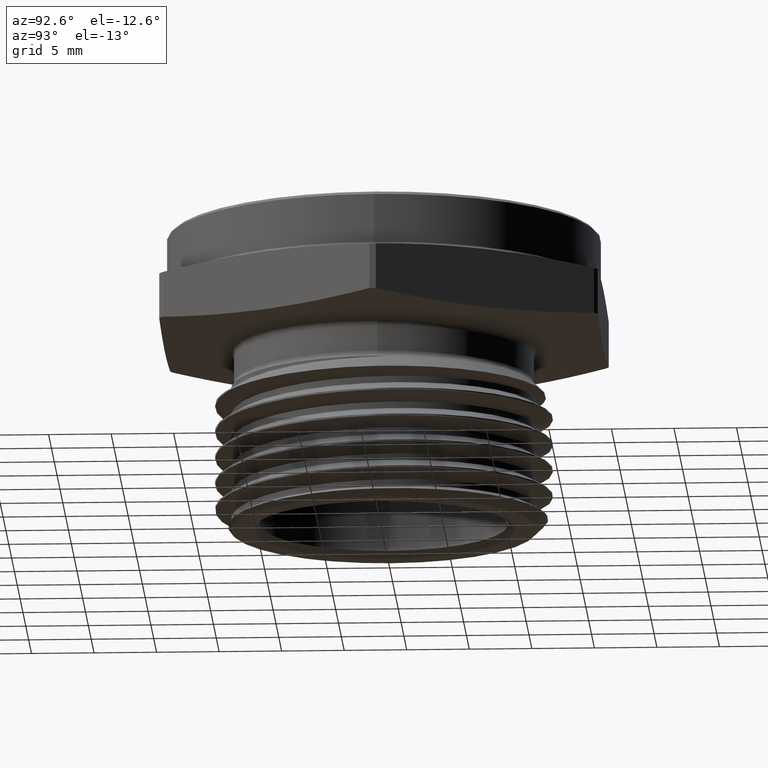
[diagram: clean part render]
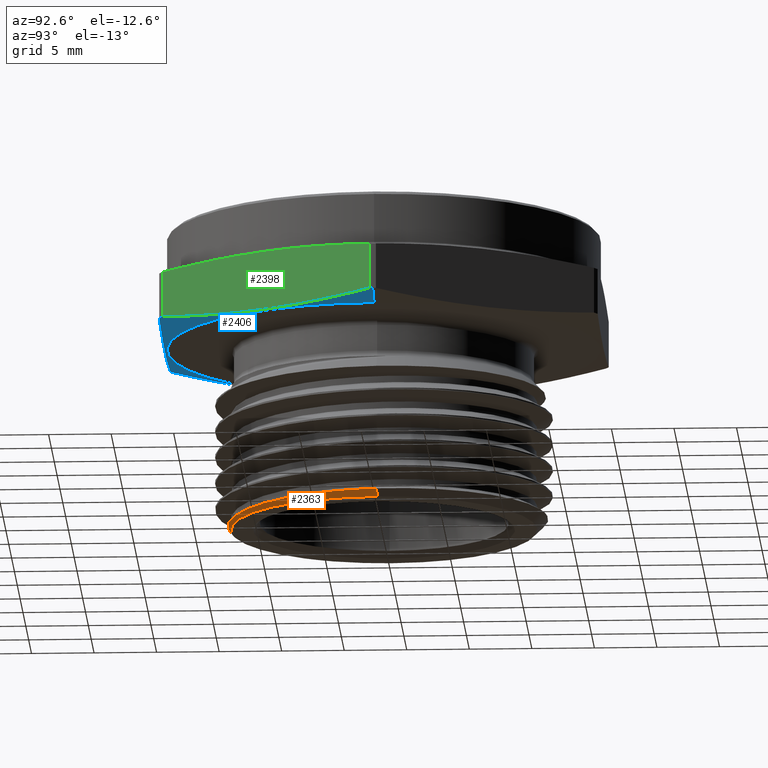
[diagram: same view with three faces highlighted in distinct colors, each labeled with its STEP entity id]
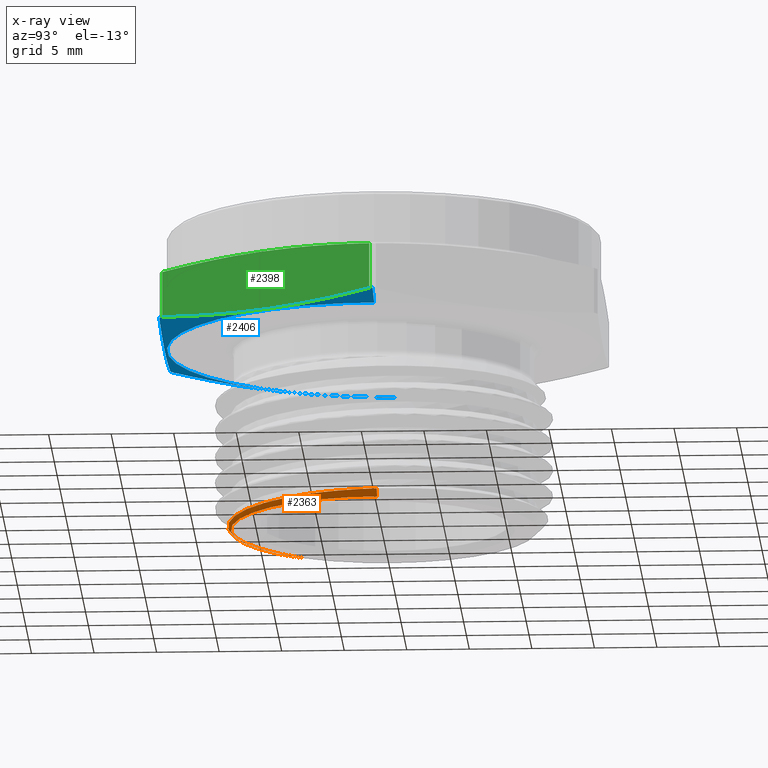
[diagram: x-ray of the same camera — body ghosted, the three highlighted faces saturated]
A machine part, auxiliary view with three faces highlighted in distinct colors.
The next image is the same camera in x-ray (body ghosted, the three faces saturated) — at least one of them is partly hidden behind the body in this view.
Their STEP definitions:

[orange] entity #2363 — the highlighted conical surface has half-angle 45 deg.
#403 = LINE ( 'NONE', #2499, #404 ) ;
#404 = VECTOR ( 'NONE', #2513, 39.37007874015748100 ) ;
#408 = CIRCLE ( 'NONE', #2247, 0.4816499999999999700 ) ;
#521 = FACE_OUTER_BOUND ( 'NONE', #1694, .T. ) ;
#532 = CONICAL_SURFACE ( 'NONE', #2303, 0.4816499999999999700, 0.7853981633974600500 ) ;
#1113 = DIRECTION ( 'NONE',  ( 1.000000000000000000, 0.0000000000000000000, 0.0000000000000000000 ) ) ;
#1115 = CARTESIAN_POINT ( 'NONE',  ( 0.0000000000000000000, 0.0000000000000000000, -0.5799999999999999600 ) ) ;
#1116 = DIRECTION ( 'NONE',  ( -0.0000000000000000000, -0.0000000000000000000, 1.000000000000000000 ) ) ;
#1218 = ORIENTED_EDGE ( 'NONE', *, *, #1563, .T. ) ;
#1219 = ORIENTED_EDGE ( 'NONE', *, *, #1554, .T. ) ;
#1220 = ORIENTED_EDGE ( 'NONE', *, *, #1568, .F. ) ;
#1230 = VERTEX_POINT ( 'NONE', #1362 ) ;
#1239 = VERTEX_POINT ( 'NONE', #1369 ) ;
#1240 = VERTEX_POINT ( 'NONE', #1370 ) ;
#1280 = B_SPLINE_CURVE_WITH_KNOTS ( 'NONE', 3,
 ( #2648, #2644, #2651, #2652, #2653, #2654, #2655, #2656, #2657, #2658, #2659, #2660, #2661, #2662, #2663, #2664, #2665, #2666, #2667, #2668, #2669, #2670, #2671, #2672, #2673, #2674, #2675, #2676, #2677, #2678, #2679, #2680, #2681, #2682, #2683, #2684, #2685, #2686, #2687, #2688, #2689, #2690 ),
 .UNSPECIFIED., .F., .F.,
 ( 4, 2, 2, 2, 2, 2, 2, 2, 2, 2, 2, 2, 2, 2, 2, 2, 2, 2, 2, 2, 4 ),
 ( 0.0000000000000000000, 0.002000291694787827900, 0.004000583389575655900, 0.006000875084363485900, 0.007001020931757398000, 0.008001166779151310000, 0.01000145847393913200, 0.01100160432133304500, 0.01200175016872695600, 0.01400204186351478200, 0.01500218771090869300, 0.01600233355830260600, 0.01800262525309043500, 0.01900277110048434800, 0.02000291694787826100, 0.02200320864266609000, 0.02400350033745391600, 0.02800408372702957800, 0.02900422957442349400, 0.03000437542181741100, 0.03200466711660524700 ),
 .UNSPECIFIED. ) ;
#1362 = CARTESIAN_POINT ( 'NONE',  ( -0.4009595742063897800, -0.2668672747869820200, -0.5799999999999999600 ) ) ;
#1369 = CARTESIAN_POINT ( 'NONE',  ( 0.4816499999999999700, 0.0000000000000000000, -0.5799999999999999600 ) ) ;
#1370 = CARTESIAN_POINT ( 'NONE',  ( 0.5031185512786202600, -2.141698986817652400E-016, -0.5585314487213800500 ) ) ;
#1554 = EDGE_CURVE ( 'NONE', #1239, #1240, #403, .T. ) ;
#1563 = EDGE_CURVE ( 'NONE', #1230, #1239, #408, .T. ) ;
#1568 = EDGE_CURVE ( 'NONE', #1230, #1240, #1280, .T. ) ;
#1694 = EDGE_LOOP ( 'NONE', ( #1218, #1219, #1220 ) ) ;
#2247 = AXIS2_PLACEMENT_3D ( 'NONE', #2638, #2639, #2640 ) ;
#2303 = AXIS2_PLACEMENT_3D ( 'NONE', #1115, #1116, #1113 ) ;
#2363 = ADVANCED_FACE ( 'NONE', ( #521 ), #532, .T. ) ;
#2499 = CARTESIAN_POINT ( 'NONE',  ( 0.4816499999999999700, 0.0000000000000000000, -0.5799999999999999600 ) ) ;
#2513 = DIRECTION ( 'NONE',  ( 0.7071067811865557900, 0.0000000000000000000, 0.7071067811865392500 ) ) ;
#2638 = CARTESIAN_POINT ( 'NONE',  ( 0.0000000000000000000, 0.0000000000000000000, -0.5799999999999999600 ) ) ;
#2639 = DIRECTION ( 'NONE',  ( -0.0000000000000000000, -0.0000000000000000000, 1.000000000000000000 ) ) ;
#2640 = DIRECTION ( 'NONE',  ( 1.000000000000000000, 0.0000000000000000000, 0.0000000000000000000 ) ) ;
#2644 = CARTESIAN_POINT ( 'NONE',  ( -0.3866821730178835500, -0.2891343817133520400, -0.5795480090490741100 ) ) ;
#2648 = CARTESIAN_POINT ( 'NONE',  ( -0.4009595742063897800, -0.2668672747869820200, -0.5799999999999999600 ) ) ;
#2651 = CARTESIAN_POINT ( 'NONE',  ( -0.3707241073460085200, -0.3100015497181390900, -0.5791071411886793400 ) ) ;
#2652 = CARTESIAN_POINT ( 'NONE',  ( -0.3355575581067044600, -0.3490272160494395400, -0.5781945642663470800 ) ) ;
#2653 = CARTESIAN_POINT ( 'NONE',  ( -0.3161922131648348700, -0.3672724397141137700, -0.5777272339539689700 ) ) ;
#2654 = CARTESIAN_POINT ( 'NONE',  ( -0.2752904757120140900, -0.3999705970766904200, -0.5768036249474072200 ) ) ;
#2655 = CARTESIAN_POINT ( 'NONE',  ( -0.2536733461872429700, -0.4145527954576549400, -0.5763448196500921000 ) ) ;
#2656 = CARTESIAN_POINT ( 'NONE',  ( -0.2195069001393342200, -0.4337888591852561100, -0.5756610223639401200 ) ) ;
#2657 = CARTESIAN_POINT ( 'NONE',  ( -0.2078265679815982900, -0.4397592332650670000, -0.5754338270790941800 ) ) ;
#2658 = CARTESIAN_POINT ( 'NONE',  ( -0.1838667751211463500, -0.4507923023664759400, -0.5749809213898204900 ) ) ;
#2659 = CARTESIAN_POINT ( 'NONE',  ( -0.1716357036040178600, -0.4558273513058849800, -0.5747561835279534300 ) ) ;
#2660 = CARTESIAN_POINT ( 'NONE',  ( -0.1346925654639016500, -0.4693123175987505800, -0.5740959651328092500 ) ) ;
#2661 = CARTESIAN_POINT ( 'NONE',  ( -0.1095472063104907200, -0.4762540833111919600, -0.5736577998862350000 ) ) ;
#2662 = CARTESIAN_POINT ( 'NONE',  ( -0.07106829302744618900, -0.4836485417257624900, -0.5729823466199081000 ) ) ;
#2663 = CARTESIAN_POINT ( 'NONE',  ( -0.05811428159998582200, -0.4856068600157785200, -0.5727552660491052100 ) ) ;
#2664 = CARTESIAN_POINT ( 'NONE',  ( -0.03194476694236413100, -0.4884863902008960700, -0.5722971720617589000 ) ) ;
#2665 = CARTESIAN_POINT ( 'NONE',  ( -0.01871767788396855300, -0.4894021186219921800, -0.5720659599773730800 ) ) ;
#2666 = CARTESIAN_POINT ( 'NONE',  ( 0.02064545026948671300, -0.4905390650121378400, -0.5713788533973561700 ) ) ;
#2667 = CARTESIAN_POINT ( 'NONE',  ( 0.04670176312215230900, -0.4891937825008211800, -0.5709253102877749300 ) ) ;
#2668 = CARTESIAN_POINT ( 'NONE',  ( 0.08551249131474186700, -0.4840766810645918400, -0.5702515906460324800 ) ) ;
#2669 = CARTESIAN_POINT ( 'NONE',  ( 0.09840355834074306100, -0.4818519734412882700, -0.5700281204913023600 ) ) ;
#2670 = CARTESIAN_POINT ( 'NONE',  ( 0.1240921537534206700, -0.4763435609136968400, -0.5695834003863057300 ) ) ;
#2671 = CARTESIAN_POINT ( 'NONE',  ( 0.1369409378553699000, -0.4730415715284181400, -0.5693612670356331700 ) ) ;
#2672 = CARTESIAN_POINT ( 'NONE',  ( 0.1747298995552524200, -0.4616841806796993500, -0.5687088153907343700 ) ) ;
#2673 = CARTESIAN_POINT ( 'NONE',  ( 0.1990574549025430900, -0.4521942641284456000, -0.5682706610823284900 ) ) ;
#2674 = CARTESIAN_POINT ( 'NONE',  ( 0.2342858827081756300, -0.4351591799777545000, -0.5676021287797766700 ) ) ;
#2675 = CARTESIAN_POINT ( 'NONE',  ( 0.2458170519383219300, -0.4290115384678128100, -0.5673777712387807500 ) ) ;
#2676 = CARTESIAN_POINT ( 'NONE',  ( 0.2684493696269112900, -0.4157627480758685500, -0.5669259964352850700 ) ) ;
#2677 = CARTESIAN_POINT ( 'NONE',  ( 0.2795949843939250500, -0.4086296811417418600, -0.5666976347051131400 ) ) ;
#2678 = CARTESIAN_POINT ( 'NONE',  ( 0.3120231869421083400, -0.3859928327230589500, -0.5660150281566772600 ) ) ;
#2679 = CARTESIAN_POINT ( 'NONE',  ( 0.3321858789200186100, -0.3693662979836592200, -0.5655659688681736700 ) ) ;
#2680 = CARTESIAN_POINT ( 'NONE',  ( 0.3696951225909068100, -0.3331439308257612100, -0.5646793690593681100 ) ) ;
#2681 = CARTESIAN_POINT ( 'NONE',  ( 0.3870417260485606900, -0.3135481492140856900, -0.5642419807966878600 ) ) ;
#2682 = CARTESIAN_POINT ( 'NONE',  ( 0.4346760739491819500, -0.2501157814801557900, -0.5629464955332226200 ) ) ;
#2683 = CARTESIAN_POINT ( 'NONE',  ( 0.4590739523821927800, -0.2040001061075403000, -0.5620637767222144100 ) ) ;
#2684 = CARTESIAN_POINT ( 'NONE',  ( 0.4804357478325346800, -0.1416590044808808700, -0.5609383839613864000 ) ) ;
#2685 = CARTESIAN_POINT ( 'NONE',  ( 0.4842266169504221300, -0.1289757445964337100, -0.5607126603903764800 ) ) ;
#2686 = CARTESIAN_POINT ( 'NONE',  ( 0.4907447822000614000, -0.1035695148422612500, -0.5602667687098431500 ) ) ;
#2687 = CARTESIAN_POINT ( 'NONE',  ( 0.4934911248432264400, -0.09079361491093135300, -0.5600456397739173000 ) ) ;
#2688 = CARTESIAN_POINT ( 'NONE',  ( 0.5002174461894849400, -0.05225118212678967600, -0.5593875854528436200 ) ) ;
#2689 = CARTESIAN_POINT ( 'NONE',  ( 0.5026940340915642100, -0.02627123858077525700, -0.5589559659084357700 ) ) ;
#2690 = CARTESIAN_POINT ( 'NONE',  ( 0.5031185512786202600, -2.141698986817652400E-016, -0.5585314487213800500 ) ) ;

[blue] entity #2406 — the highlighted conical surface has half-angle 78 deg.
#381 = CIRCLE ( 'NONE', #2245, 0.7907433714816831700 ) ;
#431 = LINE ( 'NONE', #2006, #440 ) ;
#440 = VECTOR ( 'NONE', #2002, 39.37007874015748100 ) ;
#441 = LINE ( 'NONE', #2027, #446 ) ;
#446 = VECTOR ( 'NONE', #2041, 39.37007874015748900 ) ;
#487 = CIRCLE ( 'NONE', #2292, 0.7907433714816831700 ) ;
#502 = CIRCLE ( 'NONE', #2293, 0.7907433714816831700 ) ;
#509 = CIRCLE ( 'NONE', #2296, 0.7907433714816831700 ) ;
#516 = CIRCLE ( 'NONE', #2298, 0.6825000000000003300 ) ;
#936 = CARTESIAN_POINT ( 'NONE',  ( 0.3219976674249818700, -0.6899999999999998400, 0.01633894775959133700 ) ) ;
#937 = CARTESIAN_POINT ( 'NONE',  ( 0.2577349926961727800, -0.6900000000000000600, 0.01093767977774149100 ) ) ;
#941 = CARTESIAN_POINT ( 'NONE',  ( -0.4044415792814496900, -0.6794866359911327900, 0.02300783886571764300 ) ) ;
#942 = CARTESIAN_POINT ( 'NONE',  ( -0.4366275708364185100, -0.6237388633259439700, 0.01632464615998722700 ) ) ;
#946 = CARTESIAN_POINT ( 'NONE',  ( -0.4688135623913871600, -0.5679910906607551500, 0.01091788870543787200 ) ) ;
#947 = CARTESIAN_POINT ( 'NONE',  ( -0.5331855455013246900, -0.4564955453303775100, 0.003542341500609492300 ) ) ;
#948 = CARTESIAN_POINT ( 'NONE',  ( -0.5975575286112623200, -0.3449999999999998600, -0.0003539930755590411600 ) ) ;
#949 = CARTESIAN_POINT ( 'NONE',  ( -0.6619295117211998500, -0.2335044546696225000, 0.003542341500609526600 ) ) ;
#950 = CARTESIAN_POINT ( 'NONE',  ( -0.7263014948311378200, -0.1220089093392450500, 0.01091788870543794000 ) ) ;
#951 = CARTESIAN_POINT ( 'NONE',  ( -0.7584874863861067500, -0.06626113667405626700, 0.01632464615998729900 ) ) ;
#952 = CARTESIAN_POINT ( 'NONE',  ( -0.7906734779410755600, -0.01051336400886784300, 0.02300783886571749300 ) ) ;
#953 = CARTESIAN_POINT ( 'NONE',  ( 0.3862318986596255900, -0.6899999999999998400, 0.02300783886571754200 ) ) ;
#955 = CARTESIAN_POINT ( 'NONE',  ( 0.1291328170298961800, -0.6900000000000000600, 0.003559008620510920200 ) ) ;
#956 = CARTESIAN_POINT ( 'NONE',  ( 0.06479285139855721400, -0.6900000000000000600, 0.001602315161522330900 ) ) ;
#957 = CARTESIAN_POINT ( 'NONE',  ( -0.06397452600538734700, -0.6900000000000001700, 0.001586084835941013700 ) ) ;
#958 = CARTESIAN_POINT ( 'NONE',  ( -0.1284019511491426600, -0.6900000000000000600, 0.003527143872885677700 ) ) ;
#959 = CARTESIAN_POINT ( 'NONE',  ( -0.2573352350253252400, -0.6900000000000001700, 0.01090476183656563200 ) ) ;
#960 = CARTESIAN_POINT ( 'NONE',  ( -0.3219022295582013600, -0.6900000000000001700, 0.01632903926175896500 ) ) ;
#961 = CARTESIAN_POINT ( 'NONE',  ( -0.3862318986596252100, -0.6900000000000001700, 0.02300783886571749300 ) ) ;
#989 = CARTESIAN_POINT ( 'NONE',  ( 2.817647622219903600E-018, 0.0000000000000000000, 0.02300783886571759100 ) ) ;
#990 = DIRECTION ( 'NONE',  ( -1.224646799147349800E-016, -0.0000000000000000000, -1.000000000000000000 ) ) ;
#991 = DIRECTION ( 'NONE',  ( -1.000000000000000000, 0.0000000000000000000, 1.241563202589344700E-016 ) ) ;
#1002 = CARTESIAN_POINT ( 'NONE',  ( 2.817647622219903600E-018, 0.0000000000000000000, 0.02300783886571759100 ) ) ;
#1003 = DIRECTION ( 'NONE',  ( -1.224646799147349800E-016, -0.0000000000000000000, -1.000000000000000000 ) ) ;
#1004 = DIRECTION ( 'NONE',  ( -1.000000000000000000, 0.0000000000000000000, 1.241563202589344700E-016 ) ) ;
#1015 = CARTESIAN_POINT ( 'NONE',  ( 0.7906734779410753400, -0.01051336400886681900, 0.02300783886571749300 ) ) ;
#1016 = CARTESIAN_POINT ( 'NONE',  ( 0.7584874863861066400, -0.06626113667405560100, 0.01632464615998709100 ) ) ;
#1017 = CARTESIAN_POINT ( 'NONE',  ( 2.817647622219903600E-018, 0.0000000000000000000, 0.02300783886571759100 ) ) ;
#1018 = DIRECTION ( 'NONE',  ( -1.224646799147349800E-016, -0.0000000000000000000, -1.000000000000000000 ) ) ;
#1019 = DIRECTION ( 'NONE',  ( -1.000000000000000000, 0.0000000000000000000, 1.241563202589344700E-016 ) ) ;
#1021 = CARTESIAN_POINT ( 'NONE',  ( 0.7263014948311378200, -0.1220089093392443800, 0.01091788870543777300 ) ) ;
#1022 = CARTESIAN_POINT ( 'NONE',  ( 0.6619295117212000700, -0.2335044546696219100, 0.003542341500609394300 ) ) ;
#1023 = CARTESIAN_POINT ( 'NONE',  ( 0.5975575286112633200, -0.3449999999999994200, -0.0003539930755591544000 ) ) ;
#1024 = CARTESIAN_POINT ( 'NONE',  ( 0.5331855455013254600, -0.4564955453303770600, 0.003542341500609400800 ) ) ;
#1025 = CARTESIAN_POINT ( 'NONE',  ( 0.4688135623913880500, -0.5679910906607547000, 0.01091788870543779700 ) ) ;
#1026 = CARTESIAN_POINT ( 'NONE',  ( 0.4366275708364192900, -0.6237388633259433000, 0.01632464615998712200 ) ) ;
#1027 = CARTESIAN_POINT ( 'NONE',  ( 0.4044415792814505800, -0.6794866359911321300, 0.02300783886571749300 ) ) ;
#1044 = CARTESIAN_POINT ( 'NONE',  ( 1.023586051666712600E-032, 0.0000000000000000000, 8.358214404180666500E-017 ) ) ;
#1045 = DIRECTION ( 'NONE',  ( -1.224646799147349800E-016, -0.0000000000000000000, -1.000000000000000000 ) ) ;
#1046 = DIRECTION ( 'NONE',  ( -1.000000000000000000, 0.0000000000000000000, 1.224646799147349800E-016 ) ) ;
#1303 = VERTEX_POINT ( 'NONE', #1458 ) ;
#1311 = VERTEX_POINT ( 'NONE', #1465 ) ;
#1319 = VERTEX_POINT ( 'NONE', #1473 ) ;
#1323 = VERTEX_POINT ( 'NONE', #1477 ) ;
#1328 = VERTEX_POINT ( 'NONE', #1482 ) ;
#1330 = VERTEX_POINT ( 'NONE', #1484 ) ;
#1458 = CARTESIAN_POINT ( 'NONE',  ( 0.6825000000000003300, 0.0000000000000000000, 0.0000000000000000000 ) ) ;
#1465 = CARTESIAN_POINT ( 'NONE',  ( -0.7906734779410755600, -0.01051336400886784300, 0.02300783886571749300 ) ) ;
#1473 = CARTESIAN_POINT ( 'NONE',  ( -0.6825000000000003300, 8.358214404180688700E-017, 1.671642880836133300E-016 ) ) ;
#1477 = CARTESIAN_POINT ( 'NONE',  ( 0.7906734779410753400, -0.01051336400886681900, 0.02300783886571749300 ) ) ;
#1482 = CARTESIAN_POINT ( 'NONE',  ( -0.7907433714816831700, 0.0000000000000000000, 0.02300783886571768800 ) ) ;
#1484 = CARTESIAN_POINT ( 'NONE',  ( 0.7907433714816831700, 0.0000000000000000000, 0.02300783886571749300 ) ) ;
#1497 = CARTESIAN_POINT ( 'NONE',  ( 2.817647622219903600E-018, 0.0000000000000000000, 0.02300783886571759100 ) ) ;
#1498 = DIRECTION ( 'NONE',  ( -1.224646799147349800E-016, -0.0000000000000000000, -1.000000000000000000 ) ) ;
#1499 = DIRECTION ( 'NONE',  ( -1.000000000000000000, 0.0000000000000000000, 1.241563202589344700E-016 ) ) ;
#1536 = EDGE_CURVE ( 'NONE', #1311, #1328, #381, .T. ) ;
#1587 = EDGE_CURVE ( 'NONE', #1319, #1328, #431, .T. ) ;
#1595 = EDGE_CURVE ( 'NONE', #1303, #1330, #441, .T. ) ;
#1730 = EDGE_LOOP ( 'NONE', ( #1797, #1798, #1799, #1800, #1801, #1802, #1803, #1804, #1805, #1806 ) ) ;
#1797 = ORIENTED_EDGE ( 'NONE', *, *, #1587, .F. ) ;
#1798 = ORIENTED_EDGE ( 'NONE', *, *, #2227, .F. ) ;
#1799 = ORIENTED_EDGE ( 'NONE', *, *, #1595, .T. ) ;
#1800 = ORIENTED_EDGE ( 'NONE', *, *, #2221, .T. ) ;
#1801 = ORIENTED_EDGE ( 'NONE', *, *, #2222, .T. ) ;
#1802 = ORIENTED_EDGE ( 'NONE', *, *, #2216, .T. ) ;
#1803 = ORIENTED_EDGE ( 'NONE', *, *, #2204, .T. ) ;
#1804 = ORIENTED_EDGE ( 'NONE', *, *, #2209, .T. ) ;
#1805 = ORIENTED_EDGE ( 'NONE', *, *, #2203, .T. ) ;
#1806 = ORIENTED_EDGE ( 'NONE', *, *, #1536, .T. ) ;
#2002 = DIRECTION ( 'NONE',  ( -0.9781476007338054700, 1.197885328332318200E-016, 0.2079116908177600400 ) ) ;
#2006 = CARTESIAN_POINT ( 'NONE',  ( -0.6825000000000003300, 8.358214404180688700E-017, 1.671642880836133300E-016 ) ) ;
#2027 = CARTESIAN_POINT ( 'NONE',  ( 0.6825000000000003300, 0.0000000000000000000, 0.0000000000000000000 ) ) ;
#2041 = DIRECTION ( 'NONE',  ( 0.9781476007338054700, 0.0000000000000000000, 0.2079116908177598100 ) ) ;
#2203 = EDGE_CURVE ( 'NONE', #2720, #1311, #3397, .T. ) ;
#2204 = EDGE_CURVE ( 'NONE', #2708, #2716, #3398, .T. ) ;
#2209 = EDGE_CURVE ( 'NONE', #2716, #2720, #487, .T. ) ;
#2216 = EDGE_CURVE ( 'NONE', #2724, #2708, #502, .T. ) ;
#2221 = EDGE_CURVE ( 'NONE', #1330, #1323, #509, .T. ) ;
#2222 = EDGE_CURVE ( 'NONE', #1323, #2724, #3401, .T. ) ;
#2227 = EDGE_CURVE ( 'NONE', #1303, #1319, #516, .T. ) ;
#2245 = AXIS2_PLACEMENT_3D ( 'NONE', #1497, #1498, #1499 ) ;
#2292 = AXIS2_PLACEMENT_3D ( 'NONE', #989, #990, #991 ) ;
#2293 = AXIS2_PLACEMENT_3D ( 'NONE', #1002, #1003, #1004 ) ;
#2296 = AXIS2_PLACEMENT_3D ( 'NONE', #1017, #1018, #1019 ) ;
#2298 = AXIS2_PLACEMENT_3D ( 'NONE', #1044, #1045, #1046 ) ;
#2338 = AXIS2_PLACEMENT_3D ( 'NONE', #2963, #2964, #2962 ) ;
#2406 = ADVANCED_FACE ( 'NONE', ( #3048 ), #3055, .T. ) ;
#2708 = VERTEX_POINT ( 'NONE', #3013 ) ;
#2716 = VERTEX_POINT ( 'NONE', #3008 ) ;
#2720 = VERTEX_POINT ( 'NONE', #3015 ) ;
#2724 = VERTEX_POINT ( 'NONE', #3017 ) ;
#2962 = DIRECTION ( 'NONE',  ( 1.000000000000000000, 0.0000000000000000000, -1.224646799147349800E-016 ) ) ;
#2963 = CARTESIAN_POINT ( 'NONE',  ( 1.023586051666712600E-032, 0.0000000000000000000, 8.358214404180666500E-017 ) ) ;
#2964 = DIRECTION ( 'NONE',  ( 1.224646799147349800E-016, 0.0000000000000000000, 1.000000000000000000 ) ) ;
#3008 = CARTESIAN_POINT ( 'NONE',  ( -0.3862318986596252100, -0.6900000000000001700, 0.02300783886571749300 ) ) ;
#3013 = CARTESIAN_POINT ( 'NONE',  ( 0.3862318986596255900, -0.6899999999999998400, 0.02300783886571754200 ) ) ;
#3015 = CARTESIAN_POINT ( 'NONE',  ( -0.4044415792814496900, -0.6794866359911327900, 0.02300783886571764300 ) ) ;
#3017 = CARTESIAN_POINT ( 'NONE',  ( 0.4044415792814505800, -0.6794866359911321300, 0.02300783886571749300 ) ) ;
#3048 = FACE_OUTER_BOUND ( 'NONE', #1730, .T. ) ;
#3055 = CONICAL_SURFACE ( 'NONE', #2338, 0.6825000000000003300, 1.361356816555576500 ) ;
#3397 = B_SPLINE_CURVE_WITH_KNOTS ( 'NONE', 3,
 ( #941, #942, #946, #947, #948, #949, #950, #951, #952 ),
 .UNSPECIFIED., .F., .F.,
 ( 4, 2, 1, 2, 4 ),
 ( 1.926240183765561100E-006, 0.004907071353161009800, 0.009812216466138255100, 0.01471736157911550000, 0.01962250669209274600 ),
 .UNSPECIFIED. ) ;
#3398 = B_SPLINE_CURVE_WITH_KNOTS ( 'NONE', 3,
 ( #953, #936, #937, #955, #956, #957, #958, #959, #960, #961 ),
 .UNSPECIFIED., .F., .F.,
 ( 4, 2, 2, 2, 4 ),
 ( 0.03855655953766670000, 0.04347637334247687200, 0.04839618714728703700, 0.05331600095209720900, 0.05823581475690738100 ),
 .UNSPECIFIED. ) ;
#3401 = B_SPLINE_CURVE_WITH_KNOTS ( 'NONE', 3,
 ( #1015, #1016, #1021, #1022, #1023, #1024, #1025, #1026, #1027 ),
 .UNSPECIFIED., .F., .F.,
 ( 4, 2, 1, 2, 4 ),
 ( 1.926240183814861800E-006, 0.004907071353161056700, 0.009812216466138298400, 0.01471736157911554000, 0.01962250669209278400 ),
 .UNSPECIFIED. ) ;

[green] entity #2398 — the highlighted planar face has unit normal (-0.866, 0.5, 0).
#505 = VECTOR ( 'NONE', #1037, 39.37007874015748100 ) ;
#511 = LINE ( 'NONE', #1020, #512 ) ;
#512 = VECTOR ( 'NONE', #1028, 39.37007874015748100 ) ;
#513 = LINE ( 'NONE', #1036, #505 ) ;
#562 = FACE_OUTER_BOUND ( 'NONE', #1717, .T. ) ;
#1010 = CARTESIAN_POINT ( 'NONE',  ( 0.4366275708364192300, -0.6237388633259433000, 0.1736753538400129500 ) ) ;
#1011 = CARTESIAN_POINT ( 'NONE',  ( 0.4688135623913880500, -0.5679910906607547000, 0.1790821112945622800 ) ) ;
#1015 = CARTESIAN_POINT ( 'NONE',  ( 0.7906734779410753400, -0.01051336400886681900, 0.02300783886571749300 ) ) ;
#1016 = CARTESIAN_POINT ( 'NONE',  ( 0.7584874863861066400, -0.06626113667405560100, 0.01632464615998709100 ) ) ;
#1020 = CARTESIAN_POINT ( 'NONE',  ( 0.4044415792814505800, -0.6794866359911321300, 2.364988292110565100E-017 ) ) ;
#1021 = CARTESIAN_POINT ( 'NONE',  ( 0.7263014948311378200, -0.1220089093392443800, 0.01091788870543777300 ) ) ;
#1022 = CARTESIAN_POINT ( 'NONE',  ( 0.6619295117212000700, -0.2335044546696219100, 0.003542341500609394300 ) ) ;
#1023 = CARTESIAN_POINT ( 'NONE',  ( 0.5975575286112633200, -0.3449999999999994200, -0.0003539930755591544000 ) ) ;
#1024 = CARTESIAN_POINT ( 'NONE',  ( 0.5331855455013254600, -0.4564955453303770600, 0.003542341500609400800 ) ) ;
#1025 = CARTESIAN_POINT ( 'NONE',  ( 0.4688135623913880500, -0.5679910906607547000, 0.01091788870543779700 ) ) ;
#1026 = CARTESIAN_POINT ( 'NONE',  ( 0.4366275708364192900, -0.6237388633259433000, 0.01632464615998712200 ) ) ;
#1027 = CARTESIAN_POINT ( 'NONE',  ( 0.4044415792814505800, -0.6794866359911321300, 0.02300783886571749300 ) ) ;
#1028 = DIRECTION ( 'NONE',  ( 1.224646799147349800E-016, 0.0000000000000000000, 1.000000000000000000 ) ) ;
#1029 = CARTESIAN_POINT ( 'NONE',  ( 0.4044415792814505800, -0.6794866359911321300, 0.1669921611342825600 ) ) ;
#1030 = CARTESIAN_POINT ( 'NONE',  ( 0.5331855455013254600, -0.4564955453303770600, 0.1864576584993905600 ) ) ;
#1031 = CARTESIAN_POINT ( 'NONE',  ( 0.5975575286112629900, -0.3449999999999994700, 0.1903539930755591700 ) ) ;
#1032 = CARTESIAN_POINT ( 'NONE',  ( 0.6619295117212002900, -0.2335044546696219700, 0.1864576584993905600 ) ) ;
#1033 = CARTESIAN_POINT ( 'NONE',  ( 0.7263014948311379300, -0.1220089093392444800, 0.1790821112945622500 ) ) ;
#1034 = CARTESIAN_POINT ( 'NONE',  ( 0.7584874863861066400, -0.06626113667405567100, 0.1736753538400128700 ) ) ;
#1035 = CARTESIAN_POINT ( 'NONE',  ( 0.7906734779410753400, -0.01051336400886681900, 0.1669921611342824700 ) ) ;
#1036 = CARTESIAN_POINT ( 'NONE',  ( 0.7906734779410753400, -0.01051336400886681900, -2.364988292110565100E-017 ) ) ;
#1037 = DIRECTION ( 'NONE',  ( -1.224646799147349800E-016, -0.0000000000000000000, -1.000000000000000000 ) ) ;
#1323 = VERTEX_POINT ( 'NONE', #1477 ) ;
#1477 = CARTESIAN_POINT ( 'NONE',  ( 0.7906734779410753400, -0.01051336400886681900, 0.02300783886571749300 ) ) ;
#1717 = EDGE_LOOP ( 'NONE', ( #1768, #1769, #1776, #1777 ) ) ;
#1768 = ORIENTED_EDGE ( 'NONE', *, *, #2225, .F. ) ;
#1769 = ORIENTED_EDGE ( 'NONE', *, *, #2224, .F. ) ;
#1776 = ORIENTED_EDGE ( 'NONE', *, *, #2223, .F. ) ;
#1777 = ORIENTED_EDGE ( 'NONE', *, *, #2222, .F. ) ;
#2222 = EDGE_CURVE ( 'NONE', #1323, #2724, #3401, .T. ) ;
#2223 = EDGE_CURVE ( 'NONE', #2724, #2728, #511, .T. ) ;
#2224 = EDGE_CURVE ( 'NONE', #2728, #2740, #3402, .T. ) ;
#2225 = EDGE_CURVE ( 'NONE', #2740, #1323, #513, .T. ) ;
#2337 = AXIS2_PLACEMENT_3D ( 'NONE', #2937, #2941, #2942 ) ;
#2398 = ADVANCED_FACE ( 'NONE', ( #562 ), #2935, .F. ) ;
#2724 = VERTEX_POINT ( 'NONE', #3017 ) ;
#2728 = VERTEX_POINT ( 'NONE', #3019 ) ;
#2740 = VERTEX_POINT ( 'NONE', #3025 ) ;
#2935 = PLANE ( 'NONE',  #2337 ) ;
#2937 = CARTESIAN_POINT ( 'NONE',  ( 0.3983716857408422000, -0.6899999999999998400, 0.1899999999999999700 ) ) ;
#2941 = DIRECTION ( 'NONE',  ( -0.8660254037844391500, 0.4999999999999991700, 0.0000000000000000000 ) ) ;
#2942 = DIRECTION ( 'NONE',  ( -0.4999999999999991700, -0.8660254037844391500, 0.0000000000000000000 ) ) ;
#3017 = CARTESIAN_POINT ( 'NONE',  ( 0.4044415792814505800, -0.6794866359911321300, 0.02300783886571749300 ) ) ;
#3019 = CARTESIAN_POINT ( 'NONE',  ( 0.4044415792814505800, -0.6794866359911321300, 0.1669921611342825600 ) ) ;
#3025 = CARTESIAN_POINT ( 'NONE',  ( 0.7906734779410753400, -0.01051336400886681900, 0.1669921611342824700 ) ) ;
#3401 = B_SPLINE_CURVE_WITH_KNOTS ( 'NONE', 3,
 ( #1015, #1016, #1021, #1022, #1023, #1024, #1025, #1026, #1027 ),
 .UNSPECIFIED., .F., .F.,
 ( 4, 2, 1, 2, 4 ),
 ( 1.926240183814861800E-006, 0.004907071353161056700, 0.009812216466138298400, 0.01471736157911554000, 0.01962250669209278400 ),
 .UNSPECIFIED. ) ;
#3402 = B_SPLINE_CURVE_WITH_KNOTS ( 'NONE', 3,
 ( #1029, #1010, #1011, #1030, #1031, #1032, #1033, #1034, #1035 ),
 .UNSPECIFIED., .F., .F.,
 ( 4, 2, 1, 2, 4 ),
 ( 1.926240183809887600E-006, 0.004907071353161051400, 0.009812216466138293200, 0.01471736157911553500, 0.01962250669209277700 ),
 .UNSPECIFIED. ) ;